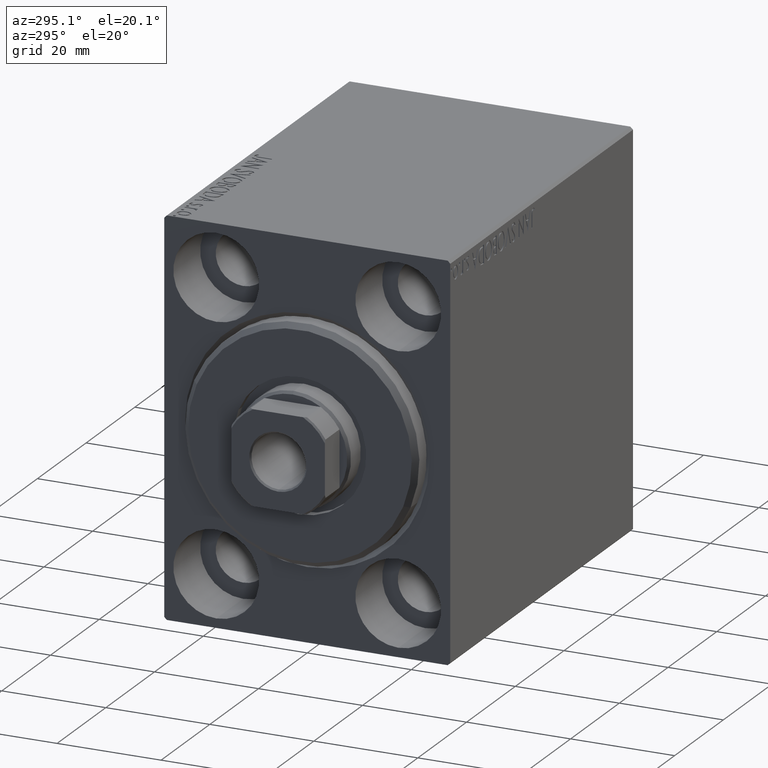
[diagram: clean part render]
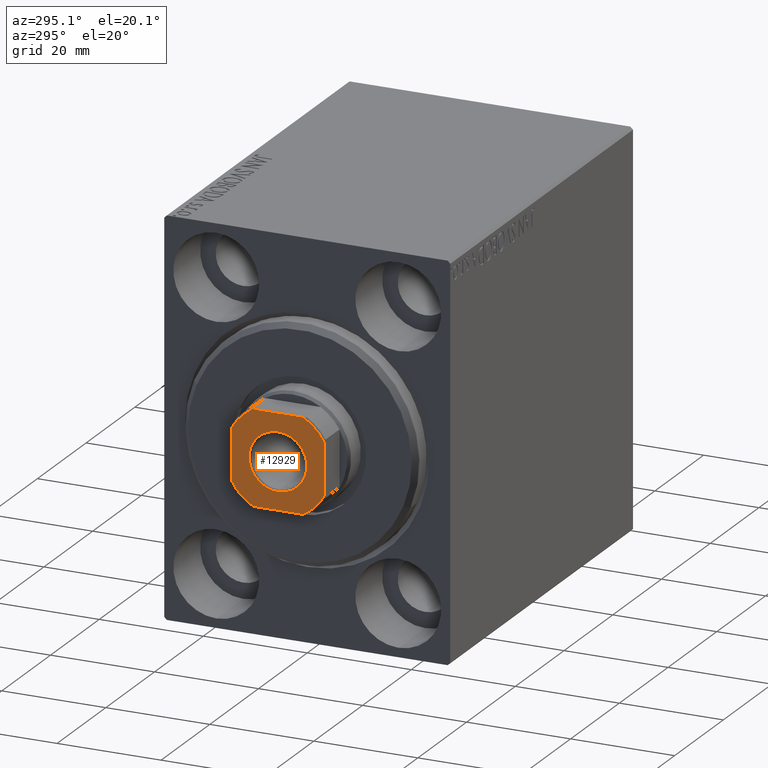
[diagram: same view with one face highlighted and labeled with its STEP entity id]
A machine part, auxiliary view. The second image highlights one B-rep face of the part: STEP entity #12929.
In plain terms, the highlighted planar face has unit normal (-1, 0, 0).
Its self-contained STEP definition (entity closure, byte-faithful):
#942 = AXIS2_PLACEMENT_3D ( 'NONE', #24980, #2451, #9055 ) ;
#2182 = CARTESIAN_POINT ( 'NONE',  ( -4.799999999999990941, 8.999999999999998224, 77.00000000000001421 ) ) ;
#2451 = DIRECTION ( 'NONE',  ( 0.000000000000000000, -0.000000000000000000, -1.000000000000000000 ) ) ;
#2699 = EDGE_CURVE ( 'NONE', #8856, #19339, #36362, .T. ) ;
#2877 = DIRECTION ( 'NONE',  ( 1.927470528863119049E-16, -1.000000000000000000, 0.000000000000000000 ) ) ;
#3098 = AXIS2_PLACEMENT_3D ( 'NONE', #9826, #36498, #39575 ) ;
#3270 = DIRECTION ( 'NONE',  ( 1.000000000000000000, 0.000000000000000000, 0.000000000000000000 ) ) ;
#3857 = LINE ( 'NONE', #37131, #36297 ) ;
#5722 = CARTESIAN_POINT ( 'NONE',  ( 8.999999999999998224, 4.800000000000010481, 77.00000000000001421 ) ) ;
#5897 = CIRCLE ( 'NONE', #942, 5.550000000000013145 ) ;
#6564 = CARTESIAN_POINT ( 'NONE',  ( 4.800000000000006928, -9.000000000000001776, 77.00000000000001421 ) ) ;
#8856 = VERTEX_POINT ( 'NONE', #39744 ) ;
#8922 = CARTESIAN_POINT ( 'NONE',  ( 4.800000000000012257, 8.999999999999998224, 77.00000000000001421 ) ) ;
#9055 = DIRECTION ( 'NONE',  ( 1.000000000000000000, 0.000000000000000000, 0.000000000000000000 ) ) ;
#9762 = DIRECTION ( 'NONE',  ( 1.000000000000000000, 0.000000000000000000, 0.000000000000000000 ) ) ;
#9826 = CARTESIAN_POINT ( 'NONE',  ( 0.000000000000000000, 0.000000000000000000, 77.00000000000001421 ) ) ;
#9865 = CARTESIAN_POINT ( 'NONE',  ( 0.000000000000000000, 0.000000000000000000, 77.00000000000001421 ) ) ;
#9903 = DIRECTION ( 'NONE',  ( 1.000000000000000000, 0.000000000000000000, 0.000000000000000000 ) ) ;
#10084 = PLANE ( 'NONE',  #35073 ) ;
#10846 = CIRCLE ( 'NONE', #32679, 5.550000000000013145 ) ;
#10903 = VERTEX_POINT ( 'NONE', #8922 ) ;
#10977 = EDGE_LOOP ( 'NONE', ( #22026, #31235 ) ) ;
#10979 = CARTESIAN_POINT ( 'NONE',  ( -8.999999999999998224, -9.000000000000001776, 77.00000000000001421 ) ) ;
#11301 = ORIENTED_EDGE ( 'NONE', *, *, #21481, .T. ) ;
#12599 = CARTESIAN_POINT ( 'NONE',  ( 9.000000000000001776, -4.800000000000007816, 77.00000000000001421 ) ) ;
#12637 = CARTESIAN_POINT ( 'NONE',  ( 0.000000000000000000, 0.000000000000000000, 77.00000000000001421 ) ) ;
#12929 = ADVANCED_FACE ( 'NONE', ( #34089, #40482 ), #10084, .T. ) ;
#13178 = DIRECTION ( 'NONE',  ( -0.000000000000000000, 0.000000000000000000, 1.000000000000000000 ) ) ;
#14235 = CARTESIAN_POINT ( 'NONE',  ( -4.799999999999995381, -9.000000000000001776, 77.00000000000001421 ) ) ;
#14540 = ORIENTED_EDGE ( 'NONE', *, *, #36226, .T. ) ;
#14862 = VERTEX_POINT ( 'NONE', #5722 ) ;
#15880 = DIRECTION ( 'NONE',  ( -0.000000000000000000, 0.000000000000000000, 1.000000000000000000 ) ) ;
#16872 = EDGE_CURVE ( 'NONE', #19339, #40968, #19658, .T. ) ;
#17956 = VERTEX_POINT ( 'NONE', #12599 ) ;
#17971 = AXIS2_PLACEMENT_3D ( 'NONE', #22495, #15880, #29320 ) ;
#18298 = VERTEX_POINT ( 'NONE', #2182 ) ;
#19211 = ORIENTED_EDGE ( 'NONE', *, *, #2699, .T. ) ;
#19339 = VERTEX_POINT ( 'NONE', #40997 ) ;
#19431 = VECTOR ( 'NONE', #35435, 1000.000000000000000 ) ;
#19658 = CIRCLE ( 'NONE', #35164, 10.19999999999999929 ) ;
#20022 = LINE ( 'NONE', #30795, #35984 ) ;
#20543 = DIRECTION ( 'NONE',  ( -0.000000000000000000, 0.000000000000000000, 1.000000000000000000 ) ) ;
#21481 = EDGE_CURVE ( 'NONE', #18298, #8856, #32429, .T. ) ;
#22026 = ORIENTED_EDGE ( 'NONE', *, *, #37928, .T. ) ;
#22495 = CARTESIAN_POINT ( 'NONE',  ( 0.000000000000000000, 0.000000000000000000, 77.00000000000001421 ) ) ;
#22655 = EDGE_CURVE ( 'NONE', #10903, #18298, #20022, .T. ) ;
#22800 = CIRCLE ( 'NONE', #3098, 10.20000000000000462 ) ;
#23511 = ORIENTED_EDGE ( 'NONE', *, *, #42010, .T. ) ;
#24316 = DIRECTION ( 'NONE',  ( -1.927470528863119049E-16, 1.000000000000000000, -0.000000000000000000 ) ) ;
#24673 = AXIS2_PLACEMENT_3D ( 'NONE', #12637, #42815, #9762 ) ;
#24980 = CARTESIAN_POINT ( 'NONE',  ( 0.000000000000000000, 0.000000000000000000, 77.00000000000001421 ) ) ;
#25002 = VECTOR ( 'NONE', #2877, 1000.000000000000000 ) ;
#26254 = EDGE_LOOP ( 'NONE', ( #23511, #14540, #38935, #11301, #19211, #41791, #35764, #32449 ) ) ;
#27160 = DIRECTION ( 'NONE',  ( 1.000000000000000000, 0.000000000000000000, 0.000000000000000000 ) ) ;
#27416 = CARTESIAN_POINT ( 'NONE',  ( -5.550000000000013145, 6.796789735267826558E-16, 77.00000000000001421 ) ) ;
#28590 = LINE ( 'NONE', #10979, #19431 ) ;
#29320 = DIRECTION ( 'NONE',  ( 1.000000000000000000, 0.000000000000000000, 0.000000000000000000 ) ) ;
#29523 = CARTESIAN_POINT ( 'NONE',  ( -9.000000000000001776, 8.999999999999998224, 77.00000000000001421 ) ) ;
#29961 = DIRECTION ( 'NONE',  ( 0.000000000000000000, -0.000000000000000000, -1.000000000000000000 ) ) ;
#30795 = CARTESIAN_POINT ( 'NONE',  ( -9.000000000000001776, 8.999999999999998224, 77.00000000000001421 ) ) ;
#31175 = VERTEX_POINT ( 'NONE', #32787 ) ;
#31235 = ORIENTED_EDGE ( 'NONE', *, *, #35735, .T. ) ;
#31345 = CIRCLE ( 'NONE', #17971, 10.20000000000000462 ) ;
#32429 = CIRCLE ( 'NONE', #24673, 10.19999999999999396 ) ;
#32449 = ORIENTED_EDGE ( 'NONE', *, *, #42386, .T. ) ;
#32679 = AXIS2_PLACEMENT_3D ( 'NONE', #42964, #29961, #9903 ) ;
#32787 = CARTESIAN_POINT ( 'NONE',  ( 5.550000000000013145, 0.000000000000000000, 77.00000000000001421 ) ) ;
#33465 = DIRECTION ( 'NONE',  ( -1.000000000000000000, -0.000000000000000000, -0.000000000000000000 ) ) ;
#34089 = FACE_BOUND ( 'NONE', #10977, .T. ) ;
#35073 = AXIS2_PLACEMENT_3D ( 'NONE', #9865, #13178, #3270 ) ;
#35164 = AXIS2_PLACEMENT_3D ( 'NONE', #37506, #20543, #27160 ) ;
#35435 = DIRECTION ( 'NONE',  ( 1.000000000000000000, 0.000000000000000000, 0.000000000000000000 ) ) ;
#35588 = VERTEX_POINT ( 'NONE', #27416 ) ;
#35735 = EDGE_CURVE ( 'NONE', #35588, #31175, #5897, .T. ) ;
#35764 = ORIENTED_EDGE ( 'NONE', *, *, #43111, .T. ) ;
#35984 = VECTOR ( 'NONE', #33465, 1000.000000000000000 ) ;
#36226 = EDGE_CURVE ( 'NONE', #14862, #10903, #22800, .T. ) ;
#36297 = VECTOR ( 'NONE', #24316, 1000.000000000000000 ) ;
#36362 = LINE ( 'NONE', #29523, #25002 ) ;
#36498 = DIRECTION ( 'NONE',  ( -0.000000000000000000, 0.000000000000000000, 1.000000000000000000 ) ) ;
#37131 = CARTESIAN_POINT ( 'NONE',  ( 8.999999999999998224, 8.999999999999998224, 77.00000000000001421 ) ) ;
#37506 = CARTESIAN_POINT ( 'NONE',  ( 0.000000000000000000, 0.000000000000000000, 77.00000000000001421 ) ) ;
#37928 = EDGE_CURVE ( 'NONE', #31175, #35588, #10846, .T. ) ;
#38935 = ORIENTED_EDGE ( 'NONE', *, *, #22655, .T. ) ;
#39575 = DIRECTION ( 'NONE',  ( 1.000000000000000000, 0.000000000000000000, 0.000000000000000000 ) ) ;
#39744 = CARTESIAN_POINT ( 'NONE',  ( -9.000000000000001776, 4.799999999999986500, 77.00000000000001421 ) ) ;
#40482 = FACE_OUTER_BOUND ( 'NONE', #26254, .T. ) ;
#40968 = VERTEX_POINT ( 'NONE', #14235 ) ;
#40997 = CARTESIAN_POINT ( 'NONE',  ( -8.999999999999998224, -4.799999999999999822, 77.00000000000001421 ) ) ;
#41791 = ORIENTED_EDGE ( 'NONE', *, *, #16872, .T. ) ;
#42010 = EDGE_CURVE ( 'NONE', #17956, #14862, #3857, .T. ) ;
#42386 = EDGE_CURVE ( 'NONE', #43282, #17956, #31345, .T. ) ;
#42815 = DIRECTION ( 'NONE',  ( -0.000000000000000000, 0.000000000000000000, 1.000000000000000000 ) ) ;
#42964 = CARTESIAN_POINT ( 'NONE',  ( 0.000000000000000000, 0.000000000000000000, 77.00000000000001421 ) ) ;
#43111 = EDGE_CURVE ( 'NONE', #40968, #43282, #28590, .T. ) ;
#43282 = VERTEX_POINT ( 'NONE', #6564 ) ;